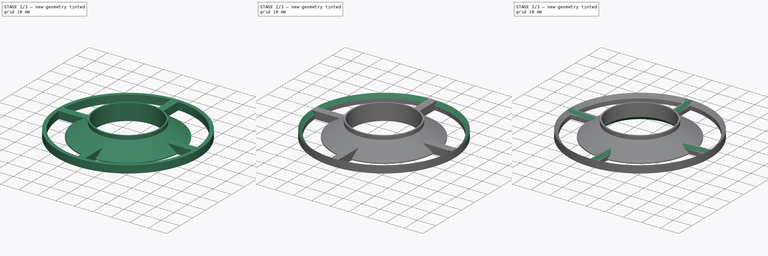
[diagram: build sequence overview — one tinted view per stage of 3, left to right]
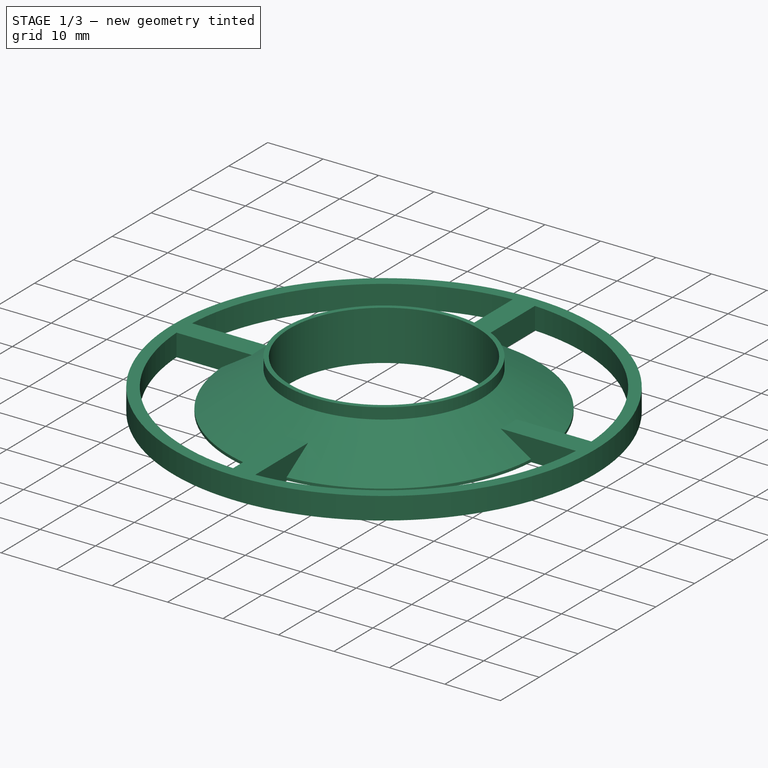
[diagram: stage 1 of 3 — iso view after this stage's code; geometry added in this stage tinted green]
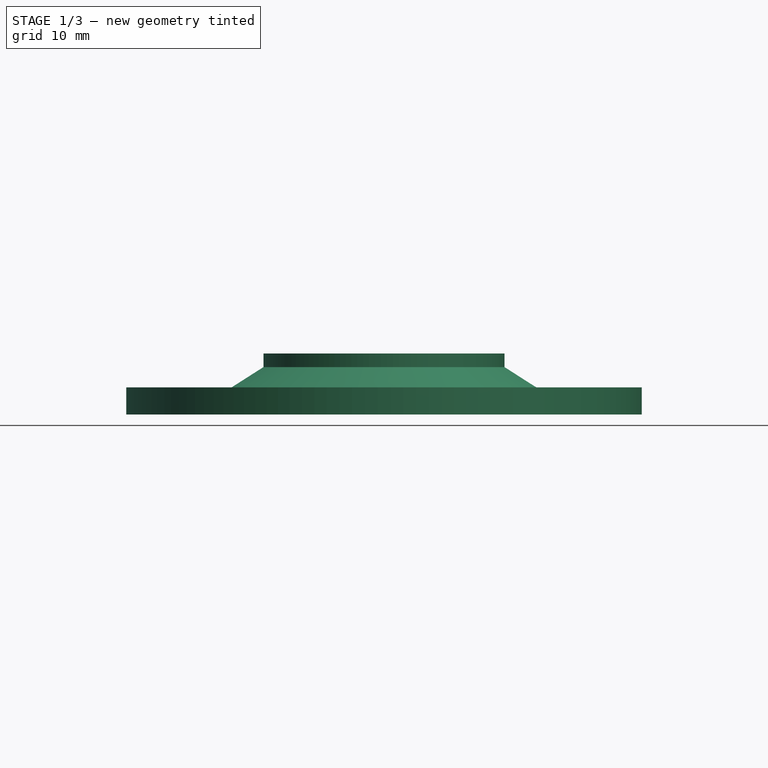
[diagram: stage 1 of 3 — front view after this stage's code; geometry added in this stage tinted green]
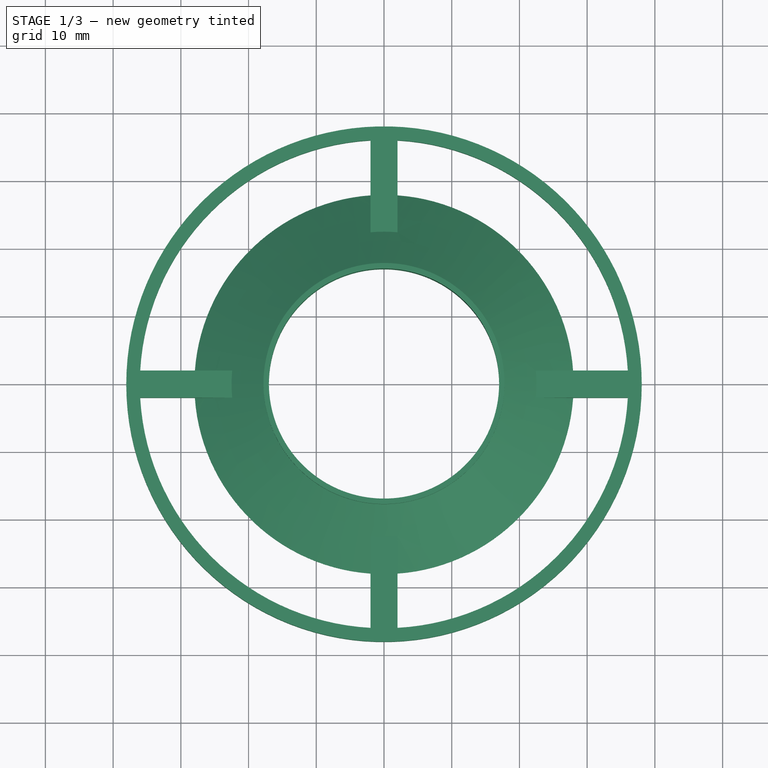
[diagram: stage 1 of 3 — top view after this stage's code; geometry added in this stage tinted green]
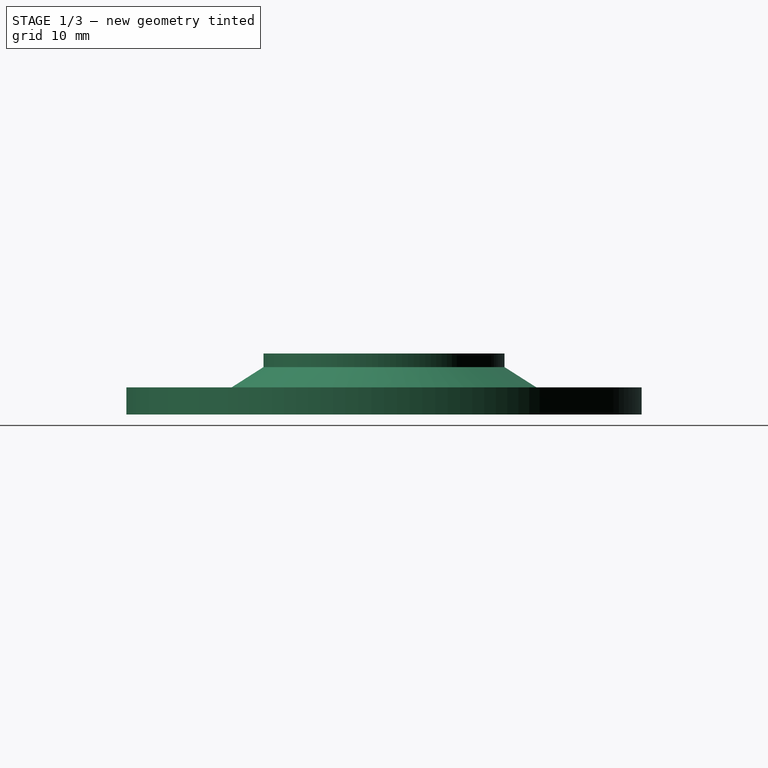
[diagram: stage 1 of 3 — right view after this stage's code; geometry added in this stage tinted green]
FCSTD DOCUMENT  (FreeCAD 0.20RUnknown)
Label: spin coater skirt
License: All rights reserved
LicenseURL: http://en.wikipedia.org/wiki/All_rights_reserved
objects: PartDesign::Chamfer×3, Sketcher::SketchObject×2, PartDesign::Revolution×1, PartDesign::Pad×1, PartDesign::Body×1, Spreadsheet::Sheet×1
note: 13 computed .brp shape members not serialized (recipe doc carries the construction recipe); baked Part::Feature solids carry a one-line shape summary decoded from their .brp

FEATURE [Sketcher::SketchObject] Sketch
  FullyConstrained = true
  MapMode = 5
  Placement = pos=(0,0,0) rot=(1,0,0;1.5708rad)
  Support = -> [XZ_Plane]
  expr: Constraints[14] = <<skirt_params>>.skirt_inner_height
  expr: Constraints[17] = <<skirt_params>>.skirt_inner_diameter / 2
  sketch-geometry (6):
    g0: LineSegment StartX=-17 StartY=0 StartZ=0 EndX=-17 EndY=9 EndZ=0
    g1: LineSegment StartX=-17 StartY=9 StartZ=0 EndX=-17.8 EndY=9 EndZ=0
    g2: LineSegment StartX=-17.8 StartY=9 StartZ=0 EndX=-17.8 EndY=7 EndZ=0
    g3: LineSegment StartX=-17.8 StartY=7 StartZ=0 EndX=-28 EndY=0.5 EndZ=0
    g4: LineSegment StartX=-28 StartY=0.5 StartZ=0 EndX=-28 EndY=0 EndZ=0
    g5: LineSegment StartX=-28 StartY=0 StartZ=0 EndX=-17 EndY=0 EndZ=0
  constraints (18):
    c: PointOnObject(g0,g-1)
    c: Vertical(g0)
    c: Coincident(g1,g0)
    c: Horizontal(g1)
    c: Coincident(g2,g1)
    c: Vertical(g2)
    c: Coincident(g3,g2)
    c: Coincident(g4,g3)
    c: Vertical(g4)
    c: Coincident(g5,g4)
    c: Coincident(g5,g0)
    c: Horizontal(g5)
    c: DistanceX(g1,g0) = 0.8
    c: DistanceY(g2,g1) = 2
    c: DistanceY(g0,g0) = 9
    c: DistanceY(g4,g3) = 0.5
    c: DistanceX(g4,g-1) = 28
    c: DistanceX(g0,g-1) = 17
FEATURE [PartDesign::Revolution] Revolution
  Angle = 360
  Axis = (0,-2e-16,1)
  Base = (0,0,0)
  Placement = pos=(0,0,0) rot=(1,0,0;1.5708rad)
  Profile = -> Sketch
  ReferenceAxis = -> Sketch [V_Axis]
FEATURE [Sketcher::SketchObject] Sketch001
  FullyConstrained = true
  MapMode = 5
  Support = -> [XY_Plane]
  expr: Constraints[1] = <<skirt_params>>.skirt_outer_diameter / 2 - <<skirt_params>>.tolerance
  expr: Constraints[43] = <<skirt_params>>.skirt_inner_diameter / 2 + 2.1
  expr: Constraints[44] = <<skirt_params>>.skirt_inner_diameter / 2 + 2.1
  expr: Constraints[45] = <<skirt_params>>.skirt_inner_diameter / 2 + 2.1
  expr: Constraints[46] = <<skirt_params>>.skirt_inner_diameter / 2 + 2.1
  expr: Constraints[6] = <<skirt_params>>.skirt_outer_diameter / 2 - <<skirt_params>>.tolerance - 2
  sketch-geometry (17):
    g0: Circle CenterX=0 CenterY=0 CenterZ=0 NormalX=0 NormalY=0 NormalZ=1 AngleXU=0 Radius=38.06
    g1: ArcOfCircle CenterX=0 CenterY=0 CenterZ=0 NormalX=0 NormalY=0 NormalZ=1 AngleXU=0 Radius=36.06 StartAngle=1.62629 EndAngle=3.0861
    g2: ArcOfCircle CenterX=0 CenterY=0 CenterZ=0 NormalX=0 NormalY=0 NormalZ=1 AngleXU=0 Radius=36.06 StartAngle=0.0554916 EndAngle=1.5153
    g3: ArcOfCircle CenterX=0 CenterY=0 CenterZ=0 NormalX=0 NormalY=0 NormalZ=1 AngleXU=0 Radius=36.06 StartAngle=4.76788 EndAngle=6.22769
    g4: ArcOfCircle CenterX=0 CenterY=0 CenterZ=0 NormalX=0 NormalY=0 NormalZ=1 AngleXU=0 Radius=36.06 StartAngle=3.19708 EndAngle=4.6569
    g5: LineSegment StartX=-36.0045 StartY=2 StartZ=0 EndX=-19.1 EndY=2 EndZ=0
    g6: LineSegment StartX=-19.1 StartY=2 StartZ=0 EndX=-19.1 EndY=-2 EndZ=0
    g7: LineSegment StartX=-19.1 StartY=-2 StartZ=0 EndX=-36.0045 EndY=-2 EndZ=0
    g8: LineSegment StartX=-2 StartY=-36.0045 StartZ=0 EndX=-2 EndY=-19.1 EndZ=0
    g9: LineSegment StartX=-2 StartY=-19.1 StartZ=0 EndX=2 EndY=-19.1 EndZ=0
    g10: LineSegment StartX=2 StartY=-19.1 StartZ=0 EndX=2 EndY=-36.0045 EndZ=0
    g11: LineSegment StartX=36.0045 StartY=2 StartZ=0 EndX=19.1 EndY=2 EndZ=0
    g12: LineSegment StartX=19.1 StartY=2 StartZ=0 EndX=19.1 EndY=-2 EndZ=0
    g13: LineSegment StartX=19.1 StartY=-2 StartZ=0 EndX=36.0045 EndY=-2 EndZ=0
    g14: LineSegment StartX=2 StartY=36.0045 StartZ=0 EndX=2 EndY=19.1 EndZ=0
    g15: LineSegment StartX=2 StartY=19.1 StartZ=0 EndX=-2 EndY=19.1 EndZ=0
    g16: LineSegment StartX=-2 StartY=19.1 StartZ=0 EndX=-2 EndY=36.0045 EndZ=0
  constraints (47):
    c: Coincident(g0,g-1)
    c: Radius(g0) = 38.06
    c: Coincident(g1,g0)
    c: Coincident(g2,g0)
    c: Coincident(g3,g0)
    c: Coincident(g4,g0)
    c: Radius(g1) = 36.06
    c: Symmetric(g1,g4,g-1)
    c: Symmetric(g1,g2,g-2)
    c: Symmetric(g2,g3,g-1)
    c: Symmetric(g4,g3,g-2)
    c: Coincident(g5,g1)
    c: Horizontal(g5)
    c: Coincident(g6,g5)
    c: Vertical(g6)
    c: Coincident(g7,g6)
    c: Coincident(g7,g4)
    c: Coincident(g8,g4)
    c: Vertical(g8)
    c: Horizontal(g9)
    c: Coincident(g10,g3)
    c: Vertical(g10)
    c: Coincident(g11,g2)
    c: Horizontal(g11)
    c: Coincident(g12,g11)
    c: Vertical(g12)
    c: Coincident(g13,g12)
    c: Coincident(g13,g3)
    c: Horizontal(g13)
    c: Coincident(g14,g2)
    c: Vertical(g14)
    c: Coincident(g15,g14)
    c: Horizontal(g15)
    c: Coincident(g16,g1)
    c: Vertical(g16)
    c: Horizontal(g7)
    c: Distance(g6) = 4
    c: Distance(g15) = 4
    c: Coincident(g15,g16)
    c: Distance(g12) = 4
    c: Distance(g9) = 4
    c: Coincident(g8,g9)
    c: Coincident(g9,g10)
    c: DistanceX(g5,g0) = 19.1
    c: DistanceX(g0,g11) = 19.1
    c: DistanceY(g0,g15) = 19.1
    c: DistanceY(g8,g0) = 19.1
FEATURE [PartDesign::Pad] Pad
  BaseFeature = -> Revolution
  Direction = (0,0,1)
  Length = 4
  Length2 = 10
  Placement = pos=(0,0,0) rot=(1,0,0;1.5708rad)
  Profile = -> Sketch001
  ReferenceAxis = -> Sketch001 [N_Axis]
  Refine = true
  Type = 0
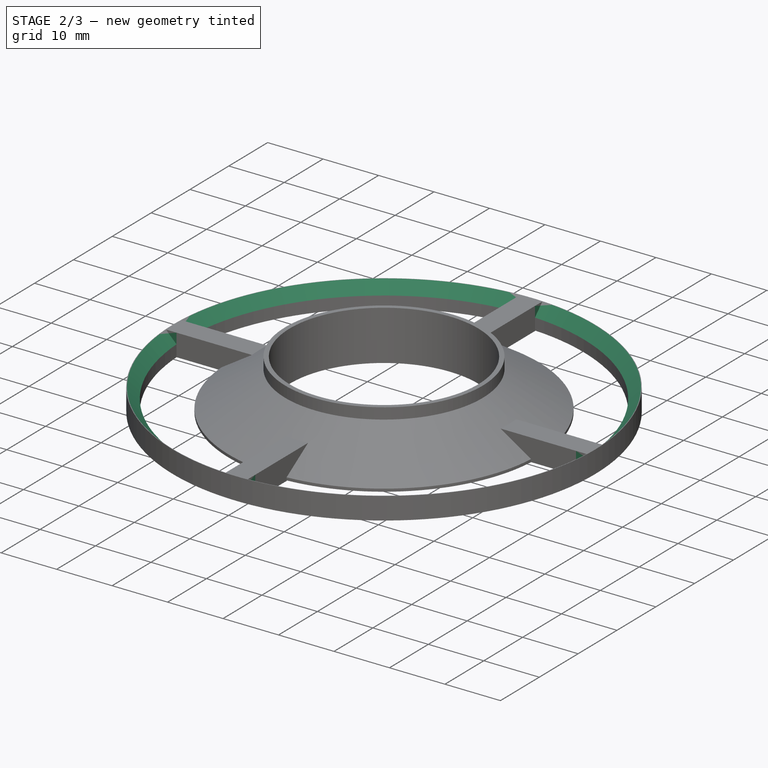
[diagram: stage 2 of 3 — iso view after this stage's code; geometry added in this stage tinted green]
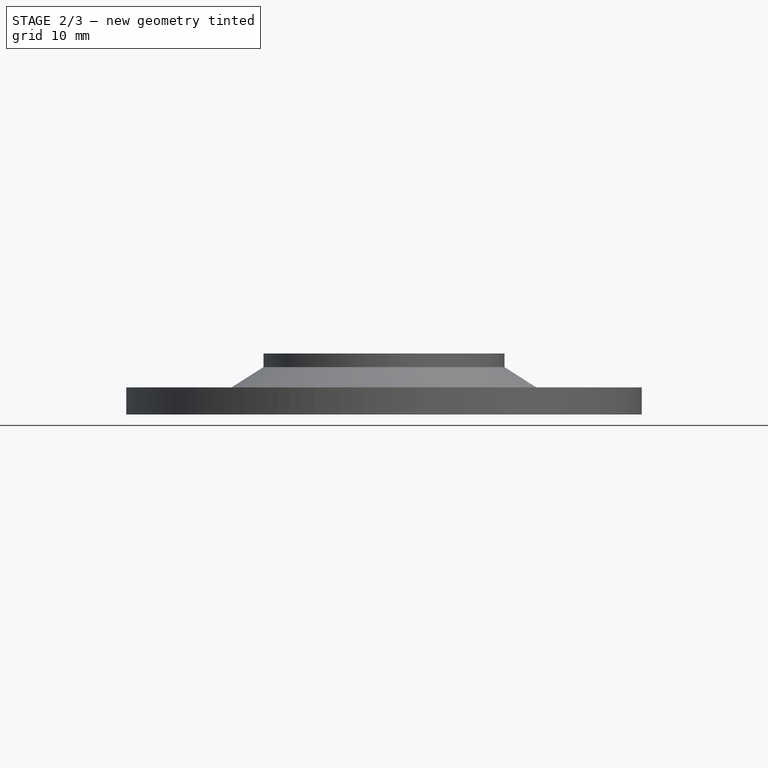
[diagram: stage 2 of 3 — front view after this stage's code; geometry added in this stage tinted green]
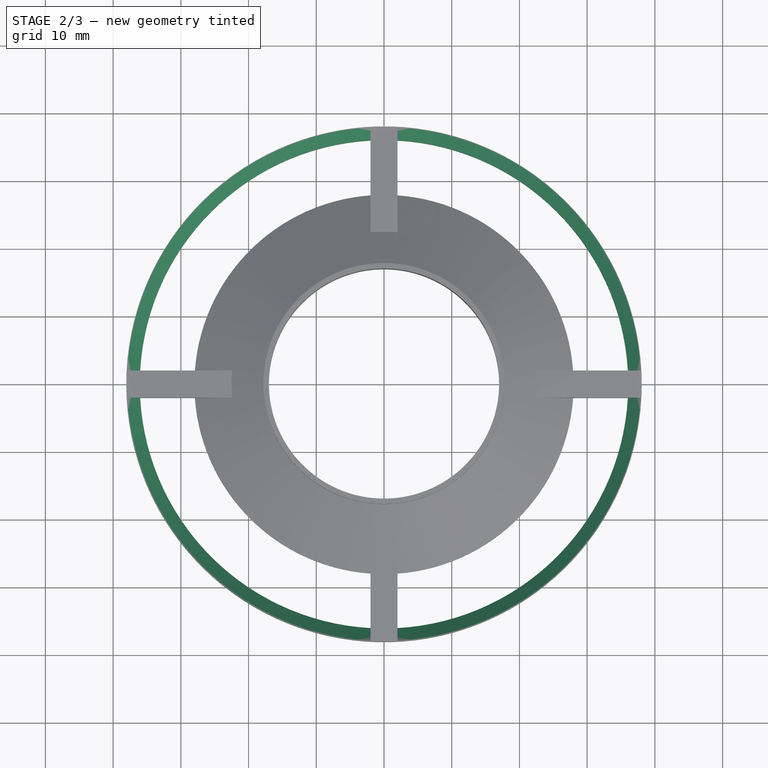
[diagram: stage 2 of 3 — top view after this stage's code; geometry added in this stage tinted green]
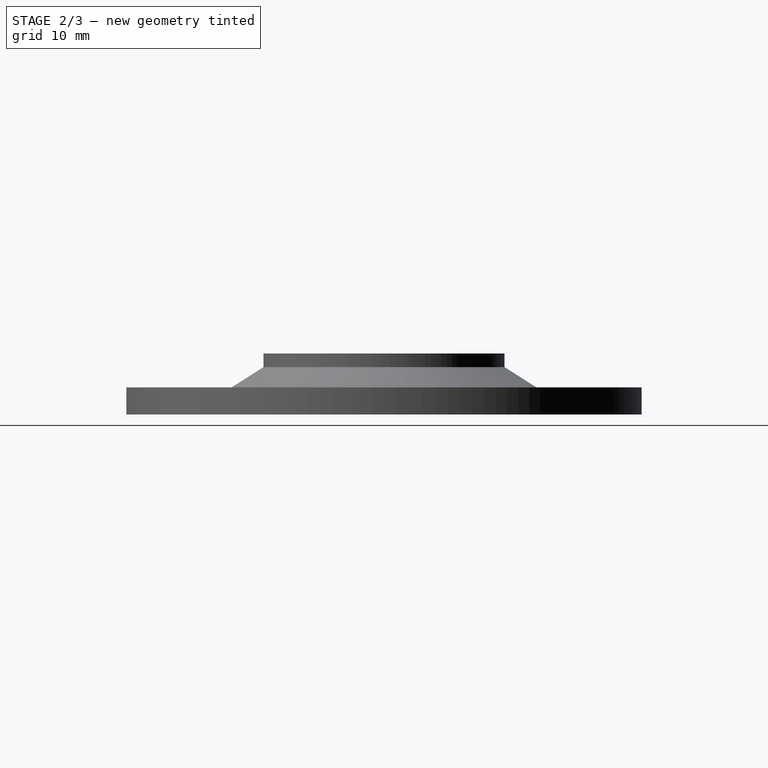
[diagram: stage 2 of 3 — right view after this stage's code; geometry added in this stage tinted green]
FEATURE [PartDesign::Chamfer] Chamfer
  Angle = 45
  Base = -> Pad [Edge13,Edge8,Edge4,Edge17]
  BaseFeature = -> Pad
  ChamferType = 0
  FlipDirection = false
  Placement = pos=(0,0,0) rot=(1,0,0;1.5708rad)
  Refine = true
  Size = 1.9
  Size2 = 1
  SupportTransform = false
  UseAllEdges = false
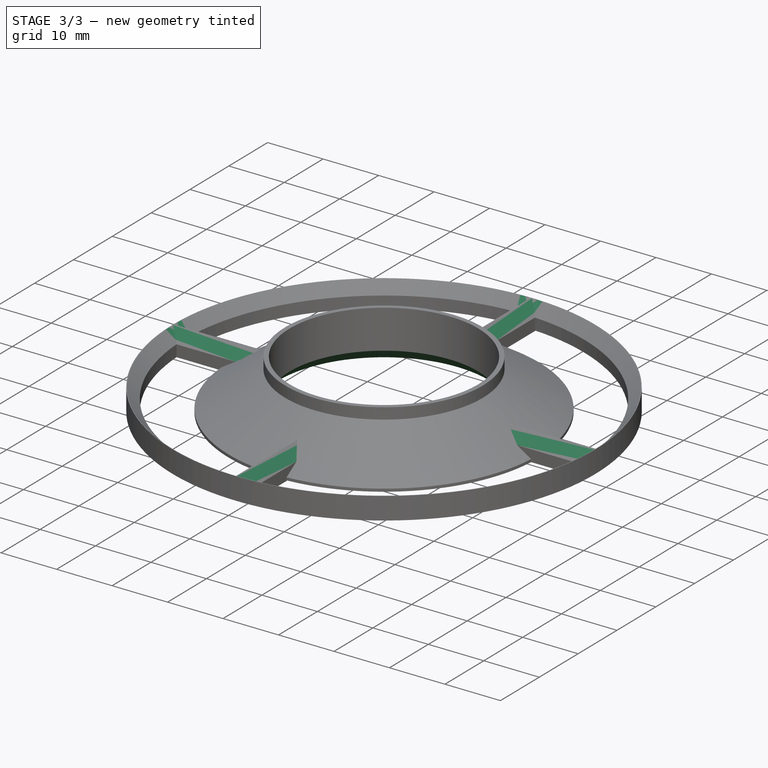
[diagram: stage 3 of 3 — iso view after this stage's code; geometry added in this stage tinted green]
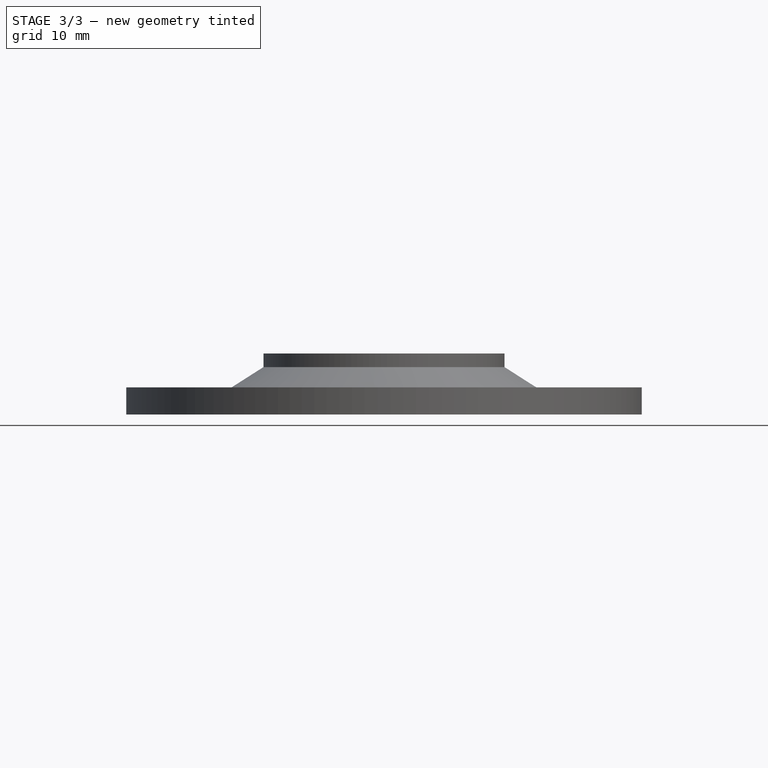
[diagram: stage 3 of 3 — front view after this stage's code; geometry added in this stage tinted green]
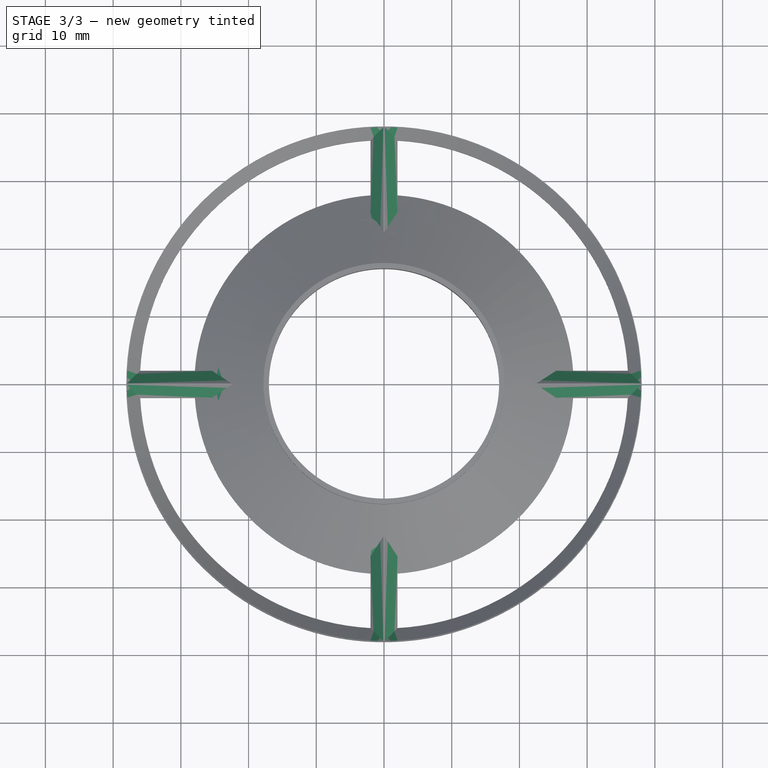
[diagram: stage 3 of 3 — top view after this stage's code; geometry added in this stage tinted green]
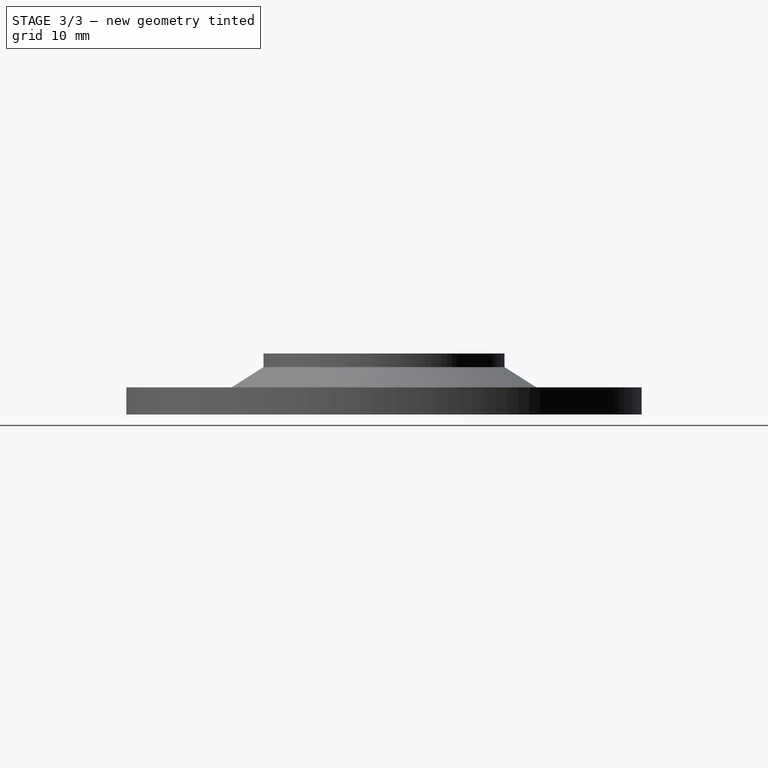
[diagram: stage 3 of 3 — right view after this stage's code; geometry added in this stage tinted green]
FEATURE [PartDesign::Chamfer] Chamfer001
  Angle = 45
  Base = -> Chamfer [Edge1,Edge2,Edge10,Edge8,Edge7,Edge5,Edge13,Edge11,Edge19,Edge17,Edge25,Edge23,Edge20,Edge22,Edge14,Edge16]
  BaseFeature = -> Chamfer
  ChamferType = 0
  FlipDirection = false
  Placement = pos=(0,0,0) rot=(1,0,0;1.5708rad)
  Refine = true
  Size = 1.9
  Size2 = 1
  SupportTransform = false
  UseAllEdges = false
FEATURE [PartDesign::Chamfer] Chamfer002
  Angle = 45
  Base = -> Chamfer001 [Edge105]
  BaseFeature = -> Chamfer001
  ChamferType = 0
  FlipDirection = false
  Placement = pos=(0,0,0) rot=(1,0,0;1.5708rad)
  Refine = true
  Size = 2
  Size2 = 1
  SupportTransform = false
  UseAllEdges = false
FEATURE [PartDesign::Body] Body
  Group = -> [Sketch,Revolution,Sketch001,Pad,Chamfer,Chamfer001,Chamfer002]
  Origin = -> Origin
  Tip = -> Chamfer002
FEATURE [Spreadsheet::Sheet] Spreadsheet  label="skirt_params"
  cells = A1=skirt_inner_diameter; B1(skirt_inner_diameter)=34; C1=Needs to be about 1mm larger than the fan's hub diameter!; A2=skirt_inner_height; B2(skirt_inner_height)=9; A3=skirt_outer_diameter; B3(skirt_outer_diameter)=76.2; A5=TOLERANCE; B5(tolerance)=0.04
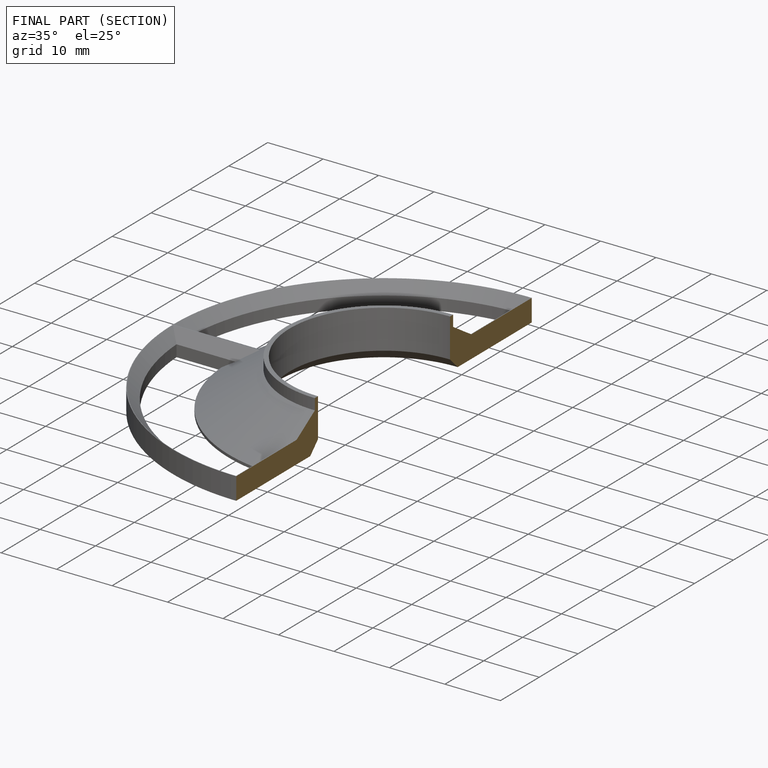
[diagram: finished part — half-section view (interior)]
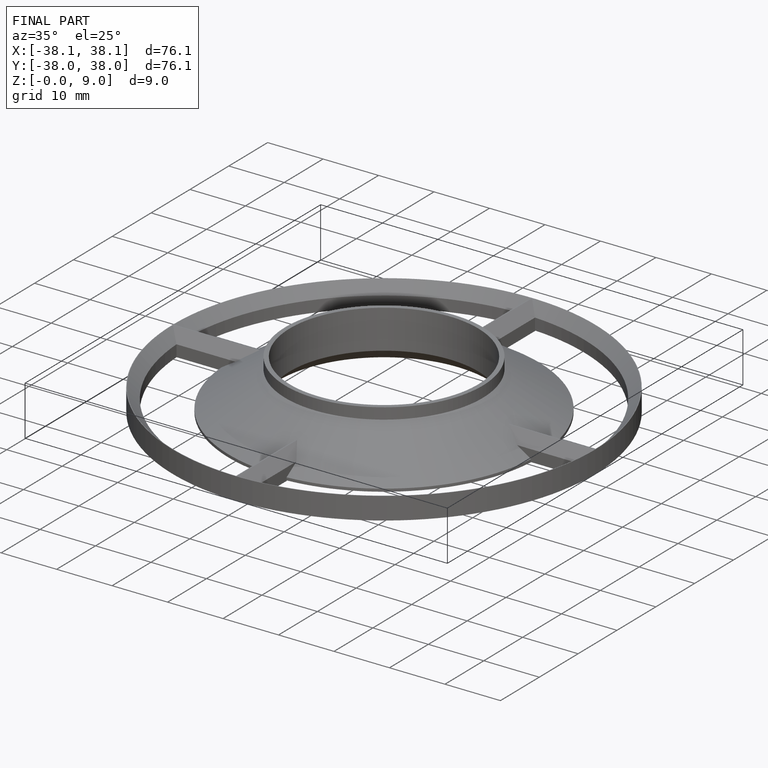
[diagram: finished part — iso view with bounding-box wireframe]
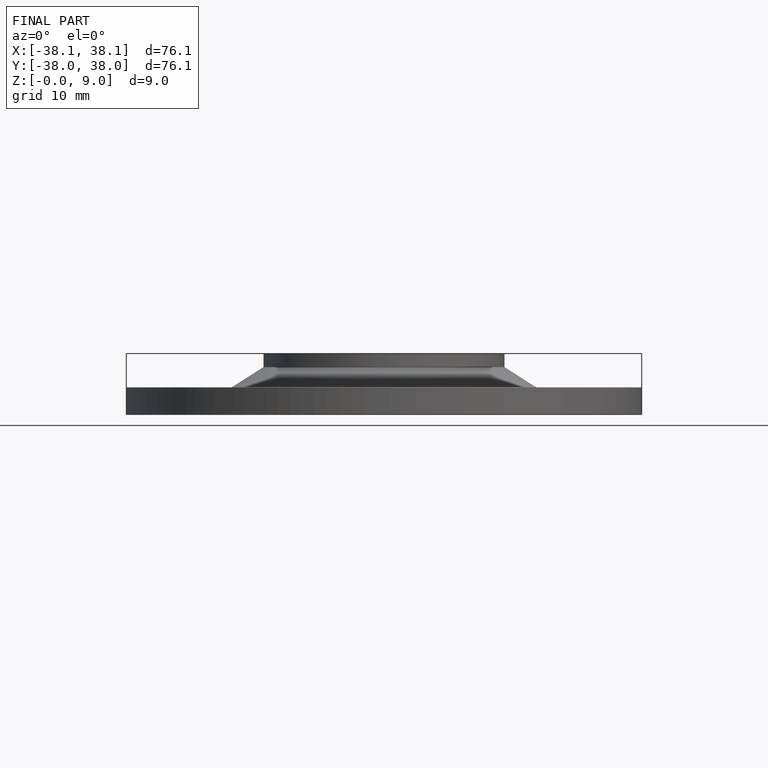
[diagram: finished part — front view with bounding-box wireframe]
